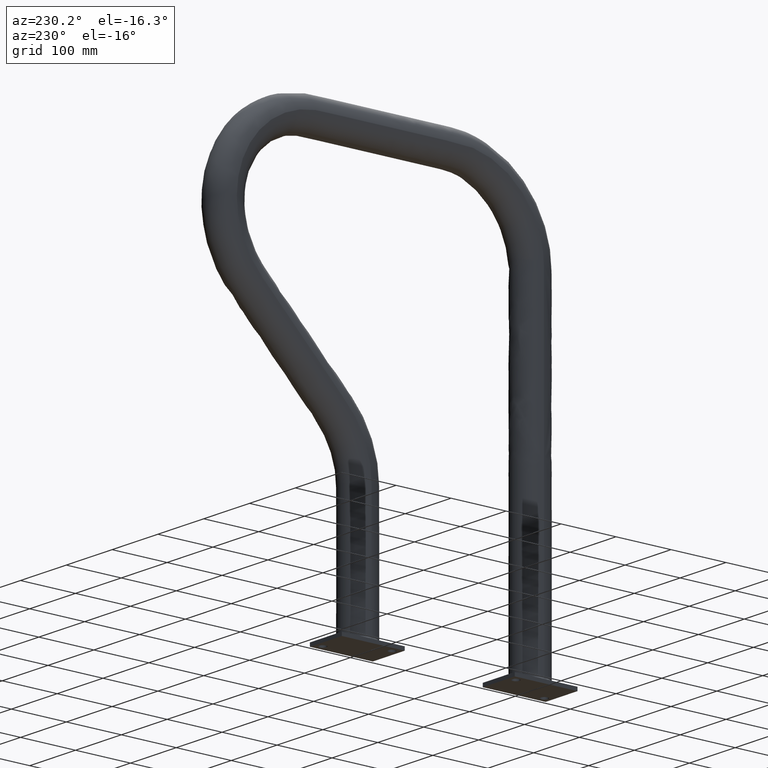
[diagram: clean part render]
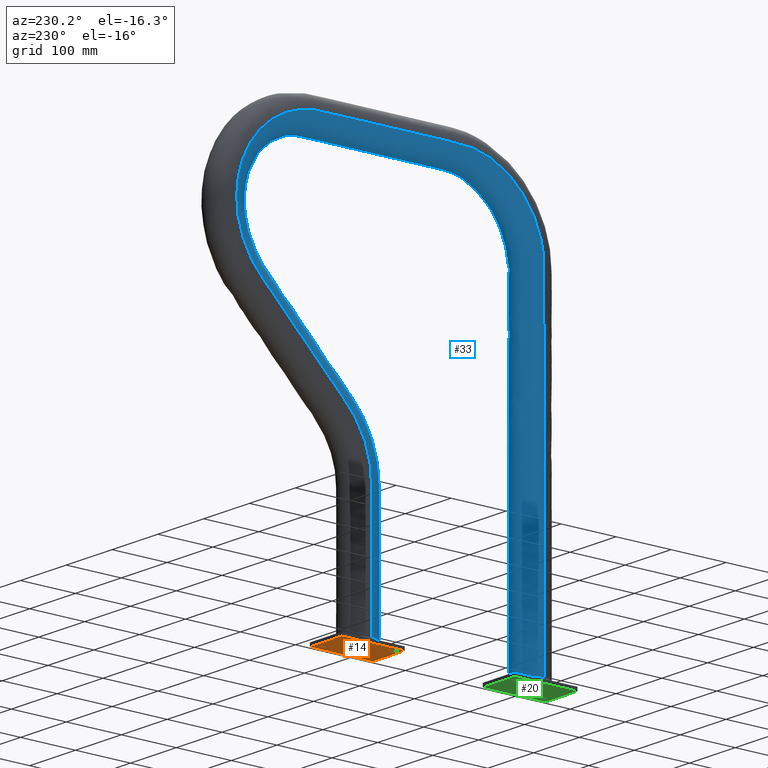
[diagram: same view with three faces highlighted in distinct colors, each labeled with its STEP entity id]
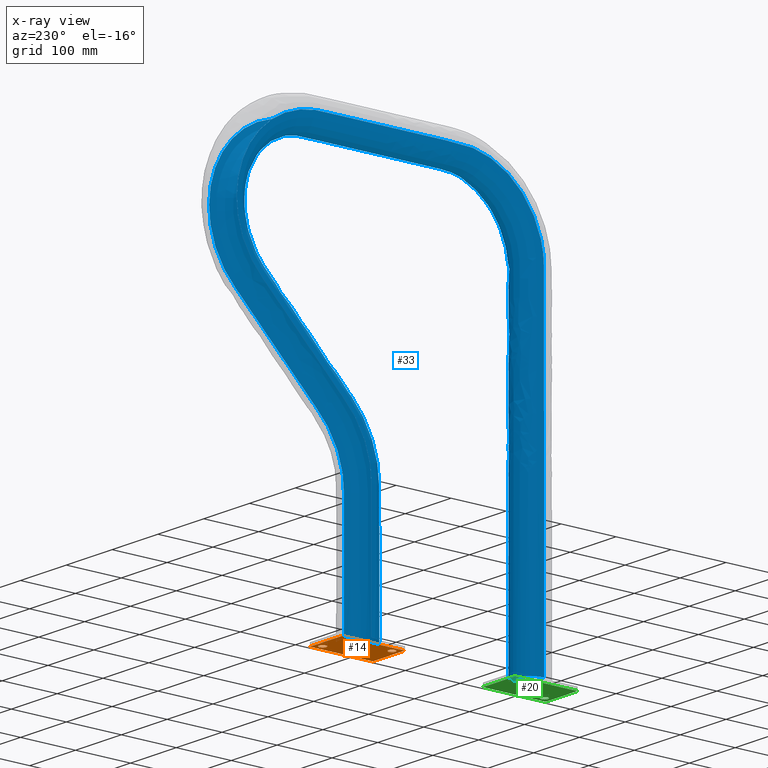
[diagram: x-ray of the same camera — body ghosted, the three highlighted faces saturated]
A machine part, auxiliary view with three faces highlighted in distinct colors.
The next image is the same camera in x-ray (body ghosted, the three faces saturated) — at least one of them is partly hidden behind the body in this view.
Their STEP definitions:

[orange] entity #14 — the highlighted planar face has unit normal (0, 0, -1).
#14=ADVANCED_FACE($,(#50,#40,#41),#360,.T.);
#40=FACE_BOUND($,#77,.T.);
#41=FACE_BOUND($,#78,.T.);
#50=FACE_OUTER_BOUND($,#76,.T.);
#76=EDGE_LOOP($,(#112,#113,#114,#115));
#77=EDGE_LOOP($,(#116,#117));
#78=EDGE_LOOP($,(#118,#119));
#112=ORIENTED_EDGE($,*,*,#240,.T.);
#113=ORIENTED_EDGE($,*,*,#245,.T.);
#114=ORIENTED_EDGE($,*,*,#244,.T.);
#115=ORIENTED_EDGE($,*,*,#243,.T.);
#116=ORIENTED_EDGE($,*,*,#277,.T.);
#117=ORIENTED_EDGE($,*,*,#299,.T.);
#118=ORIENTED_EDGE($,*,*,#280,.T.);
#119=ORIENTED_EDGE($,*,*,#302,.T.);
#240=EDGE_CURVE($,#304,#308,#404,.T.);
#243=EDGE_CURVE($,#306,#304,#407,.T.);
#244=EDGE_CURVE($,#307,#306,#408,.T.);
#245=EDGE_CURVE($,#308,#307,#409,.T.);
#277=EDGE_CURVE($,#328,#342,#383,.T.);
#280=EDGE_CURVE($,#330,#344,#385,.T.);
#299=EDGE_CURVE($,#342,#328,#400,.T.);
#302=EDGE_CURVE($,#344,#330,#402,.T.);
#304=VERTEX_POINT($,#1685);
#306=VERTEX_POINT($,#1687);
#307=VERTEX_POINT($,#1688);
#308=VERTEX_POINT($,#1689);
#328=VERTEX_POINT($,#1709);
#330=VERTEX_POINT($,#1711);
#342=VERTEX_POINT($,#1723);
#344=VERTEX_POINT($,#1725);
#360=PLANE($,#527);
#383=(
BOUNDED_CURVE()
B_SPLINE_CURVE(2,(#724,#725,#726,#727,#728),.UNSPECIFIED.,.F.,.F.)
B_SPLINE_CURVE_WITH_KNOTS((3,2,3),(-1.57087478834752,-1.17815609126064,-0.785437394173758),
.UNSPECIFIED.)
CURVE()
GEOMETRIC_REPRESENTATION_ITEM()
RATIONAL_B_SPLINE_CURVE((1.,0.707106781186547,1.,0.707106781186547,1.))
REPRESENTATION_ITEM($)
);
#385=(
BOUNDED_CURVE()
B_SPLINE_CURVE(2,(#736,#737,#738,#739,#740),.UNSPECIFIED.,.F.,.F.)
B_SPLINE_CURVE_WITH_KNOTS((3,2,3),(-1.57087478834751,-1.17815609126063,-0.785437394173753),
.UNSPECIFIED.)
CURVE()
GEOMETRIC_REPRESENTATION_ITEM()
RATIONAL_B_SPLINE_CURVE((1.,0.707106781186547,1.,0.707106781186548,1.))
REPRESENTATION_ITEM($)
);
#400=(
BOUNDED_CURVE()
B_SPLINE_CURVE(2,(#877,#878,#879,#880,#881),.UNSPECIFIED.,.F.,.F.)
B_SPLINE_CURVE_WITH_KNOTS((3,2,3),(-0.785437394173758,-0.392718697086879,
0.),.UNSPECIFIED.)
CURVE()
GEOMETRIC_REPRESENTATION_ITEM()
RATIONAL_B_SPLINE_CURVE((1.,0.707106781186547,1.,0.707106781186547,1.))
REPRESENTATION_ITEM($)
);
#402=(
BOUNDED_CURVE()
B_SPLINE_CURVE(2,(#889,#890,#891,#892,#893),.UNSPECIFIED.,.F.,.F.)
B_SPLINE_CURVE_WITH_KNOTS((3,2,3),(-0.785437394173753,-0.392718697086876,
0.),.UNSPECIFIED.)
CURVE()
GEOMETRIC_REPRESENTATION_ITEM()
RATIONAL_B_SPLINE_CURVE((1.,0.707106781186547,1.,0.707106781186547,1.))
REPRESENTATION_ITEM($)
);
#404=B_SPLINE_CURVE_WITH_KNOTS($,1,(#557,#558),.UNSPECIFIED.,.F.,.F.,(2,
2),(0.,4.),.UNSPECIFIED.);
#407=B_SPLINE_CURVE_WITH_KNOTS($,1,(#563,#564),.UNSPECIFIED.,.F.,.F.,(2,
2),(10.75,13.5),.UNSPECIFIED.);
#408=B_SPLINE_CURVE_WITH_KNOTS($,1,(#565,#566),.UNSPECIFIED.,.F.,.F.,(2,
2),(6.75,10.75),.UNSPECIFIED.);
#409=B_SPLINE_CURVE_WITH_KNOTS($,1,(#567,#568),.UNSPECIFIED.,.F.,.F.,(2,
2),(4.,6.75),.UNSPECIFIED.);
#527=AXIS2_PLACEMENT_3D($,#899,#542,$);
#542=DIRECTION($,(0.,0.,-1.));
#557=CARTESIAN_POINT($,(1.375,9.625,0.));
#558=CARTESIAN_POINT($,(1.375,5.125,0.));
#563=CARTESIAN_POINT($,(-1.375,9.625,0.));
#564=CARTESIAN_POINT($,(1.375,9.625,0.));
#565=CARTESIAN_POINT($,(-1.375,5.125,0.));
#566=CARTESIAN_POINT($,(-1.375,9.625,0.));
#567=CARTESIAN_POINT($,(1.375,5.125,0.));
#568=CARTESIAN_POINT($,(-1.375,5.125,0.));
#724=CARTESIAN_POINT($,(-0.875,5.375,0.));
#725=CARTESIAN_POINT($,(-0.624999999999995,5.375,-2.87418396286637E-18));
#726=CARTESIAN_POINT($,(-0.625,5.625,0.));
#727=CARTESIAN_POINT($,(-0.624999999999995,5.875,-2.87418396286637E-18));
#728=CARTESIAN_POINT($,(-0.875,5.875,0.));
#736=CARTESIAN_POINT($,(0.875,8.875,0.));
#737=CARTESIAN_POINT($,(1.125,8.875,-2.87418396286637E-18));
#738=CARTESIAN_POINT($,(1.125,9.125,0.));
#739=CARTESIAN_POINT($,(1.125,9.375,-2.87418396286637E-18));
#740=CARTESIAN_POINT($,(0.875,9.375,-1.14910102280362E-33));
#877=CARTESIAN_POINT($,(-0.875,5.875,0.));
#878=CARTESIAN_POINT($,(-1.125,5.875,-2.87418396286637E-18));
#879=CARTESIAN_POINT($,(-1.125,5.625,0.));
#880=CARTESIAN_POINT($,(-1.125,5.375,-2.87418396286637E-18));
#881=CARTESIAN_POINT($,(-0.875,5.375,0.));
#889=CARTESIAN_POINT($,(0.875,9.375,-1.14910102280362E-33));
#890=CARTESIAN_POINT($,(0.625000000000005,9.375,-2.87418396286637E-18));
#891=CARTESIAN_POINT($,(0.625,9.125,0.));
#892=CARTESIAN_POINT($,(0.625000000000005,8.875,-2.87418396286637E-18));
#893=CARTESIAN_POINT($,(0.875,8.875,0.));
#899=CARTESIAN_POINT($,(1.375,5.125,0.));
#1685=CARTESIAN_POINT($,(1.375,9.625,0.));
#1687=CARTESIAN_POINT($,(-1.375,9.625,0.));
#1688=CARTESIAN_POINT($,(-1.375,5.125,0.));
#1689=CARTESIAN_POINT($,(1.375,5.125,0.));
#1709=CARTESIAN_POINT($,(-0.875,5.375,0.));
#1711=CARTESIAN_POINT($,(0.875,8.875,0.));
#1723=CARTESIAN_POINT($,(-0.875,5.875,0.));
#1725=CARTESIAN_POINT($,(0.875,9.375,0.));

[blue] entity #33 — the highlighted face is a freeform B-spline surface patch.
#33=ADVANCED_FACE($,(#69),#353,.T.);
#69=FACE_OUTER_BOUND($,#105,.T.);
#105=EDGE_LOOP($,(#211,#212,#213,#214,#215));
#211=ORIENTED_EDGE($,*,*,#285,.T.);
#212=ORIENTED_EDGE($,*,*,#291,.T.);
#213=ORIENTED_EDGE($,*,*,#269,.T.);
#214=ORIENTED_EDGE($,*,*,#284,.F.);
#215=ORIENTED_EDGE($,*,*,#283,.F.);
#269=EDGE_CURVE($,#323,#321,#377,.T.);
#283=EDGE_CURVE($,#332,#333,#387,.T.);
#284=EDGE_CURVE($,#333,#321,#388,.T.);
#285=EDGE_CURVE($,#332,#337,#389,.T.);
#291=EDGE_CURVE($,#337,#323,#395,.T.);
#321=VERTEX_POINT($,#1702);
#323=VERTEX_POINT($,#1704);
#332=VERTEX_POINT($,#1713);
#333=VERTEX_POINT($,#1714);
#337=VERTEX_POINT($,#1718);
#353=(
BOUNDED_SURFACE()
B_SPLINE_SURFACE(3,2,((#1298,#1299,#1300,#1301,#1302),(#1303,#1304,#1305,
#1306,#1307),(#1308,#1309,#1310,#1311,#1312),(#1313,#1314,#1315,#1316,#1317),
(#1318,#1319,#1320,#1321,#1322),(#1323,#1324,#1325,#1326,#1327),(#1328,#1329,
#1330,#1331,#1332),(#1333,#1334,#1335,#1336,#1337),(#1338,#1339,#1340,#1341,
#1342),(#1343,#1344,#1345,#1346,#1347),(#1348,#1349,#1350,#1351,#1352),(#1353,
#1354,#1355,#1356,#1357),(#1358,#1359,#1360,#1361,#1362),(#1363,#1364,#1365,
#1366,#1367),(#1368,#1369,#1370,#1371,#1372),(#1373,#1374,#1375,#1376,#1377),
(#1378,#1379,#1380,#1381,#1382),(#1383,#1384,#1385,#1386,#1387),(#1388,#1389,
#1390,#1391,#1392),(#1393,#1394,#1395,#1396,#1397),(#1398,#1399,#1400,#1401,
#1402),(#1403,#1404,#1405,#1406,#1407),(#1408,#1409,#1410,#1411,#1412),(#1413,
#1414,#1415,#1416,#1417),(#1418,#1419,#1420,#1421,#1422),(#1423,#1424,#1425,
#1426,#1427),(#1428,#1429,#1430,#1431,#1432),(#1433,#1434,#1435,#1436,#1437),
(#1438,#1439,#1440,#1441,#1442),(#1443,#1444,#1445,#1446,#1447),(#1448,#1449,
#1450,#1451,#1452),(#1453,#1454,#1455,#1456,#1457),(#1458,#1459,#1460,#1461,
#1462),(#1463,#1464,#1465,#1466,#1467),(#1468,#1469,#1470,#1471,#1472),(#1473,
#1474,#1475,#1476,#1477),(#1478,#1479,#1480,#1481,#1482),(#1483,#1484,#1485,
#1486,#1487),(#1488,#1489,#1490,#1491,#1492),(#1493,#1494,#1495,#1496,#1497),
(#1498,#1499,#1500,#1501,#1502),(#1503,#1504,#1505,#1506,#1507),(#1508,#1509,
#1510,#1511,#1512),(#1513,#1514,#1515,#1516,#1517),(#1518,#1519,#1520,#1521,
#1522),(#1523,#1524,#1525,#1526,#1527),(#1528,#1529,#1530,#1531,#1532),(#1533,
#1534,#1535,#1536,#1537),(#1538,#1539,#1540,#1541,#1542),(#1543,#1544,#1545,
#1546,#1547),(#1548,#1549,#1550,#1551,#1552),(#1553,#1554,#1555,#1556,#1557),
(#1558,#1559,#1560,#1561,#1562),(#1563,#1564,#1565,#1566,#1567),(#1568,#1569,
#1570,#1571,#1572),(#1573,#1574,#1575,#1576,#1577),(#1578,#1579,#1580,#1581,
#1582),(#1583,#1584,#1585,#1586,#1587),(#1588,#1589,#1590,#1591,#1592),(#1593,
#1594,#1595,#1596,#1597),(#1598,#1599,#1600,#1601,#1602)),.UNSPECIFIED.,
.F.,.F.,.F.)
B_SPLINE_SURFACE_WITH_KNOTS((4,1,1,1,1,1,1,1,1,1,1,1,1,1,1,1,1,1,1,1,1,1,
1,1,1,1,1,1,1,1,1,1,1,1,1,1,1,1,1,1,1,1,1,1,1,1,1,1,1,1,1,1,1,1,1,1,1,1,
4),(3,2,3),(0.,4.5,6.75,9.,9.5890476981201,10.1780953962402,10.7671430943603,
11.3561907924804,11.9452384906005,12.5342861887206,13.1233338868406,13.7123815849607,
15.8831062160747,18.0538308471886,20.2245554783025,21.3099177938595,22.3952801094164,
22.8370650137872,23.278849918158,23.7206348225287,24.1624197268995,25.045989535641,
25.9295593443826,26.8131291531241,27.6966989618656,29.4638385793487,31.2309781968317,
32.9981178143148,33.8816876230563,34.7652574317979,35.6488272405394,36.0906121449101,
36.5323970492809,37.7823970492809,39.0323970492809,41.5323970492809,42.7823970492809,
44.0323970492809,45.2823970492809,46.5323970492809,47.0978323011465,47.3805499270793,
47.6632675530121,47.9459851789449,48.2287028048777,48.5114204308105,48.7941380567433,
50.0194471609519,51.2447562651606,52.4700653693693,53.0827199214736,53.695374473578,
54.2608097254436,54.8262449773091,55.3916802291747,55.9571154810403,61.8633654810403,
67.7696154810403,79.4321153808704),(-7.47699051554371,-5.60774288665778,
-3.73849525777185),.UNSPECIFIED.)
GEOMETRIC_REPRESENTATION_ITEM()
RATIONAL_B_SPLINE_SURFACE(((1.,0.707106781186547,1.,0.707106781186547,1.),
(1.,0.707106781186547,1.,0.707106781186547,1.),(1.,0.707106781186547,1.,
0.707106781186547,1.),(1.,0.707106781186548,1.,0.707106781186548,1.),(1.,
0.707106781186548,1.,0.707106781186548,1.),(1.,0.707106781186547,1.,0.707106781186547,
1.),(1.,0.707106781186548,1.,0.707106781186547,1.),(1.,0.707106781186547,
1.,0.707106781186547,1.),(1.,0.707106781186548,1.,0.707106781186547,1.),
(1.,0.707106781186547,1.,0.707106781186547,1.),(1.,0.707106781186548,1.,
0.707106781186548,1.),(1.,0.707106781186548,1.,0.707106781186547,1.),(1.,
0.707106781186547,1.,0.707106781186547,1.),(1.,0.707106781186548,1.,0.707106781186548,
1.),(1.,0.707106781186547,1.,0.707106781186547,1.),(1.,0.707106781186548,
1.,0.707106781186548,1.),(1.,0.707106781186547,1.,0.707106781186547,1.),
(1.,0.707106781186548,1.,0.707106781186548,1.),(1.,0.707106781186547,1.,
0.707106781186547,1.),(1.,0.707106781186548,1.,0.707106781186547,1.),(1.,
0.707106781186547,1.,0.707106781186547,1.),(1.,0.707106781186547,1.,0.707106781186547,
1.),(1.,0.707106781186548,1.,0.707106781186547,1.),(1.,0.707106781186548,
1.,0.707106781186548,1.),(1.,0.707106781186547,1.,0.707106781186547,1.),
(1.,0.707106781186547,1.,0.707106781186547,1.),(1.,0.707106781186548,1.,
0.707106781186548,1.),(1.,0.707106781186547,1.,0.707106781186547,1.),(1.,
0.707106781186547,1.,0.707106781186547,1.),(1.,0.707106781186547,1.,0.707106781186547,
1.),(1.,0.707106781186548,1.,0.707106781186548,1.),(1.,0.707106781186548,
1.,0.707106781186547,1.),(1.,0.707106781186548,1.,0.707106781186547,1.),
(1.,0.707106781186547,1.,0.707106781186547,1.),(1.,0.707106781186547,1.,
0.707106781186547,1.),(1.,0.707106781186548,1.,0.707106781186547,1.),(1.,
0.707106781186547,1.,0.707106781186547,1.),(1.,0.707106781186547,1.,0.707106781186547,
1.),(1.,0.707106781186548,1.,0.707106781186547,1.),(1.,0.707106781186547,
1.,0.707106781186547,1.),(1.,0.707106781186548,1.,0.707106781186548,1.),
(1.,0.707106781186548,1.,0.707106781186547,1.),(1.,0.707106781186548,1.,
0.707106781186547,1.),(1.,0.707106781186548,1.,0.707106781186548,1.),(1.,
0.707106781186548,1.,0.707106781186548,1.),(1.,0.707106781186548,1.,0.707106781186548,
1.),(1.,0.707106781186547,1.,0.707106781186547,1.),(1.,0.707106781186548,
1.,0.707106781186548,1.),(1.,0.707106781186548,1.,0.707106781186548,1.),
(1.,0.707106781186548,1.,0.707106781186547,1.),(0.999999999999999,0.707106781186547,
0.999999999999999,0.707106781186547,1.),(1.,0.707106781186548,1.,0.707106781186548,
1.),(1.,0.707106781186547,1.,0.707106781186547,1.),(1.,0.707106781186547,
1.,0.707106781186547,1.),(1.,0.707106781186548,1.,0.707106781186547,1.),
(1.,0.707106781186548,1.,0.707106781186547,1.),(1.,0.707106781186547,1.,
0.707106781186547,1.),(1.,0.707106781186548,1.,0.707106781186547,1.),(1.,
0.707106781186547,1.,0.707106781186547,1.),(1.,0.707106781186548,1.,0.707106781186548,
1.),(1.,0.707106781186547,1.,0.707106781186547,1.)))
REPRESENTATION_ITEM($)
SURFACE()
);
#377=(
BOUNDED_CURVE()
B_SPLINE_CURVE(3,(#636,#637,#638,#639,#640,#641,#642,#643,#644,#645,#646,
#647,#648,#649,#650,#651,#652,#653,#654,#655,#656,#657,#658,#659,#660,#661,
#662,#663,#664,#665,#666,#667,#668,#669,#670,#671,#672,#673,#674,#675,#676,
#677,#678,#679,#680,#681,#682,#683,#684,#685,#686,#687,#688,#689,#690,#691,
#692,#693,#694,#695,#696),.UNSPECIFIED.,.F.,.F.)
B_SPLINE_CURVE_WITH_KNOTS((4,1,1,1,1,1,1,1,1,1,1,1,1,1,1,1,1,1,1,1,1,1,1,
1,1,1,1,1,1,1,1,1,1,1,1,1,1,1,1,1,1,1,1,1,1,1,1,1,1,1,1,1,1,1,1,1,1,1,4),
(0.14999768131915,4.5,6.75,9.,9.5890476981201,10.1780953962402,10.7671430943603,
11.3561907924804,11.9452384906005,12.5342861887206,13.1233338868406,13.7123815849607,
15.8831062160747,18.0538308471886,20.2245554783025,21.3099177938595,22.3952801094164,
22.8370650137872,23.278849918158,23.7206348225287,24.1624197268995,25.045989535641,
25.9295593443826,26.8131291531241,27.6966989618656,29.4638385793487,31.2309781968317,
32.9981178143148,33.8816876230563,34.7652574317979,35.6488272405394,36.0906121449101,
36.5323970492809,37.7823970492809,39.0323970492809,41.5323970492809,42.7823970492809,
44.0323970492809,45.2823970492809,46.5323970492809,47.0978323011465,47.3805499270793,
47.6632675530121,47.9459851789449,48.2287028048777,48.5114204308105,48.7941380567433,
50.0194471609519,51.2447562651606,52.4700653693693,53.0827199214736,53.695374473578,
54.2608097254436,54.8262449773091,55.3916802291747,55.9571154810403,61.8633654810403,
67.7696154810403,79.4321148967266),.UNSPECIFIED.)
CURVE()
GEOMETRIC_REPRESENTATION_ITEM()
RATIONAL_B_SPLINE_CURVE((1.,1.,1.,1.,1.,1.,1.,1.,1.,1.,1.,1.,1.,1.,1.,1.,
1.,1.,1.,1.,1.,1.,1.,1.,1.,1.,1.,1.,1.,1.,1.,1.,1.,1.,1.,1.,1.,1.,1.,1.,
1.,1.,1.,1.,1.,1.,1.,1.,1.,1.,0.999999999999999,1.,1.,1.,1.,1.,1.,1.,1.,
1.,1.))
REPRESENTATION_ITEM($)
);
#387=(
BOUNDED_CURVE()
B_SPLINE_CURVE(3,(#748,#749,#750,#751,#752,#753,#754,#755,#756,#757,#758,
#759,#760,#761,#762,#763,#764,#765,#766,#767,#768,#769,#770,#771,#772,#773,
#774,#775,#776,#777,#778,#779,#780,#781,#782,#783,#784,#785,#786,#787,#788,
#789,#790,#791,#792,#793,#794,#795,#796,#797,#798,#799,#800,#801,#802,#803,
#804,#805,#806,#807,#808),.UNSPECIFIED.,.F.,.F.)
B_SPLINE_CURVE_WITH_KNOTS((4,1,1,1,1,1,1,1,1,1,1,1,1,1,1,1,1,1,1,1,1,1,1,
1,1,1,1,1,1,1,1,1,1,1,1,1,1,1,1,1,1,1,1,1,1,1,1,1,1,1,1,1,1,1,1,1,1,1,4),
(0.149996796353714,4.5,6.75,9.,9.5890476981201,10.1780953962402,10.7671430943603,
11.3561907924804,11.9452384906005,12.5342861887206,13.1233338868406,13.7123815849607,
15.8831062160747,18.0538308471886,20.2245554783025,21.3099177938595,22.3952801094164,
22.8370650137872,23.278849918158,23.7206348225287,24.1624197268995,25.045989535641,
25.9295593443826,26.8131291531241,27.6966989618656,29.4638385793487,31.2309781968317,
32.9981178143148,33.8816876230563,34.7652574317979,35.6488272405394,36.0906121449101,
36.5323970492809,37.7823970492809,39.0323970492809,41.5323970492809,42.7823970492809,
44.0323970492809,45.2823970492809,46.5323970492809,47.0978323011465,47.3805499270793,
47.6632675530121,47.9459851789449,48.2287028048777,48.5114204308105,48.7941380567433,
50.0194471609519,51.2447562651606,52.4700653693693,53.0827199214736,53.695374473578,
54.2608097254436,54.8262449773091,55.3916802291747,55.9571154810403,61.8633654810403,
67.7696154810403,79.4321153808704),.UNSPECIFIED.)
CURVE()
GEOMETRIC_REPRESENTATION_ITEM()
RATIONAL_B_SPLINE_CURVE((1.,1.,1.,1.,1.,1.,1.,1.,1.,1.,1.,1.,1.,1.,1.,1.,
1.,1.,1.,1.,1.,1.,1.,1.,1.,1.,1.,1.,1.,1.,1.,1.,1.,1.,1.,1.,1.,1.,1.,1.,
1.,1.,1.,1.,1.,1.,1.,1.,1.,1.,0.999999999999999,1.,1.,1.,1.,1.,1.,1.,1.,
1.,1.))
REPRESENTATION_ITEM($)
);
#388=(
BOUNDED_CURVE()
B_SPLINE_CURVE(3,(#809,#810,#811,#812,#813,#814,#815),.UNSPECIFIED.,.F.,
.F.)
B_SPLINE_CURVE_WITH_KNOTS((4,1,1,1,4),(4.20973543654917,5.22729711411896,
6.31438222625866,7.33210714360118,8.41917953201777),.UNSPECIFIED.)
CURVE()
GEOMETRIC_REPRESENTATION_ITEM()
RATIONAL_B_SPLINE_CURVE((1.,1.,1.,1.,1.,1.,1.))
REPRESENTATION_ITEM($)
);
#389=(
BOUNDED_CURVE()
B_SPLINE_CURVE(3,(#816,#817,#818,#819),.UNSPECIFIED.,.F.,.F.)
B_SPLINE_CURVE_WITH_KNOTS((4,4),(4.20192811010861,4.21902476615812),.UNSPECIFIED.)
CURVE()
GEOMETRIC_REPRESENTATION_ITEM()
RATIONAL_B_SPLINE_CURVE((1.,1.,1.,1.))
REPRESENTATION_ITEM($)
);
#395=(
BOUNDED_CURVE()
B_SPLINE_CURVE(3,(#844,#845,#846,#847,#848,#849,#850),.UNSPECIFIED.,.F.,
.F.)
B_SPLINE_CURVE_WITH_KNOTS((4,1,1,1,4),(4.21902476615812,5.25220003829197,
6.33712814931928,7.35303186075439,8.40346627752688),.UNSPECIFIED.)
CURVE()
GEOMETRIC_REPRESENTATION_ITEM()
RATIONAL_B_SPLINE_CURVE((1.,1.,1.,1.,1.,1.,1.))
REPRESENTATION_ITEM($)
);
#636=CARTESIAN_POINT($,(1.18750002661052,7.34554686119319,0.40000005318768));
#637=CARTESIAN_POINT($,(1.18750054076513,7.34570832758117,1.85001990622462));
#638=CARTESIAN_POINT($,(1.18751261108159,7.34471099487654,4.04988410585989));
#639=CARTESIAN_POINT($,(1.18754924544854,7.34771774543352,7.00003845710319));
#640=CARTESIAN_POINT($,(1.18757781774712,7.3395373368351,8.69626767759837));
#641=CARTESIAN_POINT($,(1.18760003753637,7.36104371918334,9.83902142103311));
#642=CARTESIAN_POINT($,(1.18761211532942,7.45236133314234,10.4223924555415));
#643=CARTESIAN_POINT($,(1.18762480470855,7.59438817219515,10.9945821341949));
#644=CARTESIAN_POINT($,(1.18763809350837,7.79345210585914,11.5497098113778));
#645=CARTESIAN_POINT($,(1.18765196956348,8.04524952786369,12.0830528252714));
#646=CARTESIAN_POINT($,(1.1876664207085,8.34938739198049,12.5880625377117));
#647=CARTESIAN_POINT($,(1.18768143477802,8.69734339464227,13.0650542851024));
#648=CARTESIAN_POINT($,(1.18771093086696,9.47153006225236,13.8697685737013));
#649=CARTESIAN_POINT($,(1.18775787846256,10.6393826834234,15.0257824515045));
#650=CARTESIAN_POINT($,(1.18782659202484,12.1723605289759,16.5631971063832));
#651=CARTESIAN_POINT($,(1.18788893383518,13.4521727059886,17.8412058704929));
#652=CARTESIAN_POINT($,(1.18794155117844,14.4744163431139,18.8656404433521));
#653=CARTESIAN_POINT($,(1.18797425389565,15.0931442698116,19.4784607395818));
#654=CARTESIAN_POINT($,(1.18799941937212,15.5486335311843,19.9513134465603));
#655=CARTESIAN_POINT($,(1.18801655606,15.8232232927506,20.297813390522));
#656=CARTESIAN_POINT($,(1.18803388457132,16.0738437078251,20.6621222206536));
#657=CARTESIAN_POINT($,(1.18805723817472,16.3705592083273,21.1715304340619));
#658=CARTESIAN_POINT($,(1.18808688407635,16.6696774212637,21.8462066871592));
#659=CARTESIAN_POINT($,(1.1881231443362,16.9060424130784,22.7002675496236));
#660=CARTESIAN_POINT($,(1.18816004871597,17.0144295067279,23.5795041281065));
#661=CARTESIAN_POINT($,(1.18821005863828,16.985695551388,24.7606211391669));
#662=CARTESIAN_POINT($,(1.18827397605113,16.6240149809328,26.2044846154386));
#663=CARTESIAN_POINT($,(1.18835259649879,15.7055715811961,27.736816659476));
#664=CARTESIAN_POINT($,(1.18841943944562,14.6026632893214,28.7364685394192));
#665=CARTESIAN_POINT($,(1.18847354511549,13.574540160616,29.3185175345303));
#666=CARTESIAN_POINT($,(1.18851439896612,12.7481338960121,29.6375902624344));
#667=CARTESIAN_POINT($,(1.18854863845854,12.0276528859738,29.7986458772621));
#668=CARTESIAN_POINT($,(1.18857612629364,11.4418360721463,29.8658597803028));
#669=CARTESIAN_POINT($,(1.18860938314892,10.730703637133,29.8782322107936));
#670=CARTESIAN_POINT($,(1.18865539888104,9.74984510423498,29.8738929234498));
#671=CARTESIAN_POINT($,(1.18873385852715,8.08336289204637,29.875374273069));
#672=CARTESIAN_POINT($,(1.18881245928802,6.41670615321504,29.8749116005803));
#673=CARTESIAN_POINT($,(1.18889073615092,4.75005208670264,29.8749227428603));
#674=CARTESIAN_POINT($,(1.18894916559591,3.49999875133177,29.8753946424087));
#675=CARTESIAN_POINT($,(1.18900720058554,2.25000354676509,29.8734986875048));
#676=CARTESIAN_POINT($,(1.18905422377464,1.22826480712053,29.8793123223));
#677=CARTESIAN_POINT($,(1.18908615430312,0.528765083750568,29.8640053564864));
#678=CARTESIAN_POINT($,(1.18910329481787,0.154464340720613,29.8169249146227));
#679=CARTESIAN_POINT($,(1.18911611409676,-0.124640894541615,29.7710378377547));
#680=CARTESIAN_POINT($,(1.18912889592347,-0.401148905886091,29.7113561660349));
#681=CARTESIAN_POINT($,(1.18914163895294,-0.674464339285013,29.6389343948676));
#682=CARTESIAN_POINT($,(1.18915434184016,-0.944118163554715,29.5536402899793));
#683=CARTESIAN_POINT($,(1.18918107443878,-1.5042260039333,29.3470922449522));
#684=CARTESIAN_POINT($,(1.18922151009293,-2.3169886369094,28.9248971817326));
#685=CARTESIAN_POINT($,(1.18927497593431,-3.27222251433781,28.1472496188826));
#686=CARTESIAN_POINT($,(1.18931867783824,-3.92024628919738,27.3512606441674));
#687=CARTESIAN_POINT($,(1.18935307283336,-4.33384926382493,26.6454693547667));
#688=CARTESIAN_POINT($,(1.18937791702343,-4.58179722698739,26.1017703649988));
#689=CARTESIAN_POINT($,(1.18940182278699,-4.77069226280928,25.5511874862511));
#690=CARTESIAN_POINT($,(1.18942480575832,-4.90119292651665,25.0010301728267));
#691=CARTESIAN_POINT($,(1.18944750260886,-4.98686892631041,24.4404617718269));
#692=CARTESIAN_POINT($,(1.18954042883036,-5.00633578118098,22.0947652550622));
#693=CARTESIAN_POINT($,(1.18969103455355,-4.99742463195944,17.968794642721));
#694=CARTESIAN_POINT($,(1.18991594311466,-5.00099659239819,10.1438808614838));
#695=CARTESIAN_POINT($,(1.18999859489637,-4.99975324913284,4.28748468494972));
#696=CARTESIAN_POINT($,(1.18999997338845,-4.99999031936882,0.399999946810388));
#748=CARTESIAN_POINT($,(-1.1875000266102,7.34554686109464,0.399999168210603));
#749=CARTESIAN_POINT($,(-1.1875005407619,7.34570832784863,1.85001931628429));
#750=CARTESIAN_POINT($,(-1.18751261107792,7.34471099457588,4.04988381085606));
#751=CARTESIAN_POINT($,(-1.18754924544854,7.34771774543352,7.00003845710319));
#752=CARTESIAN_POINT($,(-1.18757781774712,7.3395373368351,8.69626767759837));
#753=CARTESIAN_POINT($,(-1.18760003753637,7.36104371918334,9.83902142103312));
#754=CARTESIAN_POINT($,(-1.18761211532942,7.45236133314234,10.4223924555415));
#755=CARTESIAN_POINT($,(-1.18762480470855,7.59438817219515,10.9945821341949));
#756=CARTESIAN_POINT($,(-1.18763809350836,7.79345210585914,11.5497098113778));
#757=CARTESIAN_POINT($,(-1.18765196956349,8.04524952786369,12.0830528252714));
#758=CARTESIAN_POINT($,(-1.1876664207085,8.34938739198049,12.5880625377117));
#759=CARTESIAN_POINT($,(-1.18768143477802,8.69734339464227,13.0650542851024));
#760=CARTESIAN_POINT($,(-1.18771093086696,9.47153006225233,13.8697685737013));
#761=CARTESIAN_POINT($,(-1.18775787846255,10.6393826834234,15.0257824515045));
#762=CARTESIAN_POINT($,(-1.18782659202485,12.1723605289759,16.5631971063832));
#763=CARTESIAN_POINT($,(-1.18788893383518,13.4521727059886,17.8412058704929));
#764=CARTESIAN_POINT($,(-1.18794155117843,14.4744163431139,18.8656404433521));
#765=CARTESIAN_POINT($,(-1.18797425389565,15.0931442698116,19.4784607395818));
#766=CARTESIAN_POINT($,(-1.18799941937212,15.5486335311843,19.9513134465603));
#767=CARTESIAN_POINT($,(-1.18801655605999,15.8232232927506,20.297813390522));
#768=CARTESIAN_POINT($,(-1.18803388457133,16.073843707825,20.6621222206536));
#769=CARTESIAN_POINT($,(-1.18805723817471,16.3705592083273,21.171530434062));
#770=CARTESIAN_POINT($,(-1.18808688407635,16.6696774212636,21.8462066871592));
#771=CARTESIAN_POINT($,(-1.18812314433619,16.9060424130784,22.7002675496236));
#772=CARTESIAN_POINT($,(-1.18816004871597,17.0144295067279,23.5795041281065));
#773=CARTESIAN_POINT($,(-1.18821005863828,16.985695551388,24.7606211391669));
#774=CARTESIAN_POINT($,(-1.18827397605112,16.6240149809328,26.2044846154387));
#775=CARTESIAN_POINT($,(-1.1883525964988,15.7055715811961,27.7368166594761));
#776=CARTESIAN_POINT($,(-1.18841943944562,14.6026632893214,28.7364685394192));
#777=CARTESIAN_POINT($,(-1.18847354511548,13.574540160616,29.3185175345303));
#778=CARTESIAN_POINT($,(-1.18851439896612,12.7481338960121,29.6375902624344));
#779=CARTESIAN_POINT($,(-1.18854863845853,12.0276528859738,29.7986458772621));
#780=CARTESIAN_POINT($,(-1.18857612629363,11.4418360721463,29.8658597803028));
#781=CARTESIAN_POINT($,(-1.18860938314892,10.730703637133,29.8782322107936));
#782=CARTESIAN_POINT($,(-1.18865539888103,9.74984510423498,29.8738929234498));
#783=CARTESIAN_POINT($,(-1.18873385852716,8.08336289204637,29.875374273069));
#784=CARTESIAN_POINT($,(-1.18881245928802,6.41670615321504,29.8749116005803));
#785=CARTESIAN_POINT($,(-1.18889073615092,4.75005208670264,29.8749227428602));
#786=CARTESIAN_POINT($,(-1.18894916559591,3.49999875133176,29.8753946424087));
#787=CARTESIAN_POINT($,(-1.18900720058554,2.25000354676509,29.8734986875048));
#788=CARTESIAN_POINT($,(-1.18905422377462,1.22826480712053,29.8793123223));
#789=CARTESIAN_POINT($,(-1.18908615430312,0.528765083750568,29.8640053564864));
#790=CARTESIAN_POINT($,(-1.18910329481786,0.154464340720613,29.8169249146227));
#791=CARTESIAN_POINT($,(-1.18911611409675,-0.124640894541615,29.7710378377547));
#792=CARTESIAN_POINT($,(-1.18912889592346,-0.401148905886091,29.7113561660349));
#793=CARTESIAN_POINT($,(-1.18914163895294,-0.674464339285013,29.6389343948676));
#794=CARTESIAN_POINT($,(-1.18915434184016,-0.944118163554715,29.5536402899793));
#795=CARTESIAN_POINT($,(-1.18918107443877,-1.5042260039333,29.3470922449522));
#796=CARTESIAN_POINT($,(-1.18922151009293,-2.31698863690941,28.9248971817326));
#797=CARTESIAN_POINT($,(-1.1892749759343,-3.27222251433781,28.1472496188826));
#798=CARTESIAN_POINT($,(-1.18931867783825,-3.92024628919739,27.3512606441674));
#799=CARTESIAN_POINT($,(-1.18935307283336,-4.33384926382494,26.6454693547667));
#800=CARTESIAN_POINT($,(-1.18937791702343,-4.58179722698739,26.1017703649988));
#801=CARTESIAN_POINT($,(-1.18940182278698,-4.77069226280929,25.5511874862511));
#802=CARTESIAN_POINT($,(-1.18942480575831,-4.90119292651666,25.0010301728267));
#803=CARTESIAN_POINT($,(-1.18944750260884,-4.98686892631042,24.4404617718269));
#804=CARTESIAN_POINT($,(-1.18954042883036,-5.00633578118099,22.0947652550622));
#805=CARTESIAN_POINT($,(-1.18969103455355,-4.99742463195945,17.968794642721));
#806=CARTESIAN_POINT($,(-1.18991594311929,-5.00099659247187,10.1438807001044));
#807=CARTESIAN_POINT($,(-1.18999859490092,-4.99975324906432,4.28748436217916));
#808=CARTESIAN_POINT($,(-1.18999997338862,-4.99999031939835,0.399999462668524));
#809=CARTESIAN_POINT($,(-1.19074860920252,-4.99998907537235,0.399999962547309));
#810=CARTESIAN_POINT($,(-1.19024880838931,-4.69921751847406,0.40000226644522));
#811=CARTESIAN_POINT($,(-0.942821048653579,-4.07616665869377,0.400006174702568));
#812=CARTESIAN_POINT($,(-0.0206564266363216,-3.68023164439544,0.40000781193651));
#813=CARTESIAN_POINT($,(0.922900745548162,-4.05846046359498,0.400006238579205));
#814=CARTESIAN_POINT($,(1.19201895240883,-4.67785204659993,0.400002454832195));
#815=CARTESIAN_POINT($,(1.18999997338845,-4.99999031936882,0.399999946810388));
#816=CARTESIAN_POINT($,(-1.18830401951042,7.34554779398043,0.400000082264978));
#817=CARTESIAN_POINT($,(-1.18830987922066,7.34049776464831,0.400000011319803));
#818=CARTESIAN_POINT($,(-1.18828179457758,7.3354476129234,0.399999940152221));
#819=CARTESIAN_POINT($,(-1.18821960338276,7.33039772443555,0.399999868764058));
#844=CARTESIAN_POINT($,(-1.18821960338276,7.33039772443555,0.399999868764058));
#845=CARTESIAN_POINT($,(-1.18446130091416,7.02522577165308,0.399995554675674));
#846=CARTESIAN_POINT($,(-0.921405992258173,6.40156629611987,0.399985058938785));
#847=CARTESIAN_POINT($,(0.0132134504605972,6.02851672025201,0.399977376820512));
#848=CARTESIAN_POINT($,(0.934920662624748,6.42570893760486,0.399985486506577));
#849=CARTESIAN_POINT($,(1.18907446729116,7.03449399730319,0.399995730375849));
#850=CARTESIAN_POINT($,(1.18750002661052,7.34554686119319,0.40000005318768));
#1298=CARTESIAN_POINT($,(1.1875,7.345527146057,0.25));
#1299=CARTESIAN_POINT($,(1.1875,6.158027146057,0.25));
#1300=CARTESIAN_POINT($,(0.,6.158027146057,0.25));
#1301=CARTESIAN_POINT($,(-1.1875,6.15802714605701,0.25));
#1302=CARTESIAN_POINT($,(-1.1875,7.345527146057,0.25));
#1303=CARTESIAN_POINT($,(1.1875,7.34575533349204,1.75002778948865));
#1304=CARTESIAN_POINT($,(1.1875,6.15830052503464,1.75162045477454));
#1305=CARTESIAN_POINT($,(1.9151347174784E-15,6.15830052503465,1.75162045477454));
#1306=CARTESIAN_POINT($,(-1.1875,6.15830052503464,1.75162045477454));
#1307=CARTESIAN_POINT($,(-1.1875,7.34575533349204,1.75002778948865));
#1308=CARTESIAN_POINT($,(1.18751199016987,7.34466003380381,3.99988227577155));
#1309=CARTESIAN_POINT($,(1.18751199016988,6.1569763157721,3.99383014768515));
#1310=CARTESIAN_POINT($,(0.,6.15697631577208,3.99383014768515));
#1311=CARTESIAN_POINT($,(-1.18751199016988,6.1569763157721,3.99383014768515));
#1312=CARTESIAN_POINT($,(-1.18751199016987,7.34466003380381,3.99988227577155));
#1313=CARTESIAN_POINT($,(1.18754924544854,7.34771774543352,7.00003845710319));
#1314=CARTESIAN_POINT($,(1.18754924544853,6.16060233879386,7.01532804384777));
#1315=CARTESIAN_POINT($,(0.,6.16060233879387,7.01532804384777));
#1316=CARTESIAN_POINT($,(-1.18754924544852,6.16060233879386,7.01532804384777));
#1317=CARTESIAN_POINT($,(-1.18754924544854,7.34771774543352,7.00003845710319));
#1318=CARTESIAN_POINT($,(1.18757781774712,7.3395373368351,8.69626767759837));
#1319=CARTESIAN_POINT($,(1.18757781774712,6.15077326306784,8.65446098822215));
#1320=CARTESIAN_POINT($,(8.46545056276681E-15,6.15077326306782,8.65446098822215));
#1321=CARTESIAN_POINT($,(-1.18757781774712,6.15077326306784,8.65446098822215));
#1322=CARTESIAN_POINT($,(-1.18757781774712,7.33953733683511,8.69626767759837));
#1323=CARTESIAN_POINT($,(1.18760003753637,7.36104371918334,9.83902142103312));
#1324=CARTESIAN_POINT($,(1.18760003753637,6.1765166723887,9.94732145678481));
#1325=CARTESIAN_POINT($,(0.,6.17651667238869,9.94732145678481));
#1326=CARTESIAN_POINT($,(-1.18760003753637,6.1765166723887,9.94732145678481));
#1327=CARTESIAN_POINT($,(-1.18760003753637,7.36104371918334,9.83902142103312));
#1328=CARTESIAN_POINT($,(1.18761211532942,7.45236133314234,10.4223924555415));
#1329=CARTESIAN_POINT($,(1.18761211532941,6.28588779599997,10.6566632202224));
#1330=CARTESIAN_POINT($,(0.,6.28588779599998,10.6566632202224));
#1331=CARTESIAN_POINT($,(-1.18761211532941,6.28588779599997,10.6566632202224));
#1332=CARTESIAN_POINT($,(-1.18761211532942,7.45236133314234,10.4223924555415));
#1333=CARTESIAN_POINT($,(1.18762480470855,7.59438817219515,10.9945821341949));
#1334=CARTESIAN_POINT($,(1.18762480470854,6.45605079900847,11.3393334575416));
#1335=CARTESIAN_POINT($,(0.,6.45605079900847,11.3393334575416));
#1336=CARTESIAN_POINT($,(-1.18762480470854,6.45605079900847,11.3393334575416));
#1337=CARTESIAN_POINT($,(-1.18762480470855,7.59438817219515,10.9945821341949));
#1338=CARTESIAN_POINT($,(1.18763809350837,7.79345210585914,11.5497098113778));
#1339=CARTESIAN_POINT($,(1.18763809350837,6.69436903951301,12.0049657343764));
#1340=CARTESIAN_POINT($,(-1.91513471747839E-15,6.694369039513,12.0049657343764));
#1341=CARTESIAN_POINT($,(-1.18763809350836,6.69436903951301,12.0049657343764));
#1342=CARTESIAN_POINT($,(-1.18763809350836,7.79345210585914,11.5497098113778));
#1343=CARTESIAN_POINT($,(1.18765196956348,8.04524952786369,12.0830528252714));
#1344=CARTESIAN_POINT($,(1.18765196956348,6.99650085805108,12.644188961339));
#1345=CARTESIAN_POINT($,(1.9151347174784E-15,6.99650085805107,12.644188961339));
#1346=CARTESIAN_POINT($,(-1.18765196956347,6.99650085805108,12.644188961339));
#1347=CARTESIAN_POINT($,(-1.18765196956349,8.04524952786369,12.0830528252714));
#1348=CARTESIAN_POINT($,(1.1876664207085,8.34938739198049,12.5880625377117));
#1349=CARTESIAN_POINT($,(1.1876664207085,7.35893984943704,13.2473347591318));
#1350=CARTESIAN_POINT($,(0.,7.35893984943704,13.2473347591318));
#1351=CARTESIAN_POINT($,(-1.1876664207085,7.35893984943704,13.2473347591318));
#1352=CARTESIAN_POINT($,(-1.1876664207085,8.34938739198049,12.5880625377117));
#1353=CARTESIAN_POINT($,(1.18768143477802,8.69734339464227,13.0650542851024));
#1354=CARTESIAN_POINT($,(1.18768143477803,7.78280790278342,13.825788362983));
#1355=CARTESIAN_POINT($,(-3.83026943495679E-15,7.78280790278341,13.825788362983));
#1356=CARTESIAN_POINT($,(-1.18768143477802,7.78280790278342,13.825788362983));
#1357=CARTESIAN_POINT($,(-1.18768143477802,8.69734339464227,13.0650542851024));
#1358=CARTESIAN_POINT($,(1.18771093086696,9.47153006225233,13.8697685737013));
#1359=CARTESIAN_POINT($,(1.18771093086696,8.66037655444292,14.7399684739107));
#1360=CARTESIAN_POINT($,(-6.14785999886181E-15,8.66037655444291,14.7399684739107));
#1361=CARTESIAN_POINT($,(-1.18771093086696,8.66037655444292,14.7399684739107));
#1362=CARTESIAN_POINT($,(-1.18771093086696,9.47153006225233,13.8697685737013));
#1363=CARTESIAN_POINT($,(1.18775787846256,10.6393826834234,15.0257824515045));
#1364=CARTESIAN_POINT($,(1.18775787846256,9.78854796054918,15.8540471579163));
#1365=CARTESIAN_POINT($,(-3.83026943495679E-15,9.7885479605492,15.8540471579163));
#1366=CARTESIAN_POINT($,(-1.18775787846255,9.78854796054918,15.8540471579163));
#1367=CARTESIAN_POINT($,(-1.18775787846255,10.6393826834234,15.0257824515045));
#1368=CARTESIAN_POINT($,(1.18782659202484,12.1723605289759,16.5631971063832));
#1369=CARTESIAN_POINT($,(1.18782659202484,11.33490337513,17.4057350491994));
#1370=CARTESIAN_POINT($,(1.9151347174784E-15,11.3349033751299,17.4057350491994));
#1371=CARTESIAN_POINT($,(-1.18782659202484,11.33490337513,17.4057350491994));
#1372=CARTESIAN_POINT($,(-1.18782659202485,12.1723605289759,16.5631971063832));
#1373=CARTESIAN_POINT($,(1.18788893383518,13.4521727059886,17.8412058704929));
#1374=CARTESIAN_POINT($,(1.18788893383517,12.6135566887464,18.6825654219158));
#1375=CARTESIAN_POINT($,(0.,12.6135566887464,18.6825654219158));
#1376=CARTESIAN_POINT($,(-1.18788893383518,12.6135566887464,18.6825654219158));
#1377=CARTESIAN_POINT($,(-1.18788893383518,13.4521727059886,17.8412058704929));
#1378=CARTESIAN_POINT($,(1.18794155117844,14.4744163431139,18.8656404433521));
#1379=CARTESIAN_POINT($,(1.18794155117844,13.6279533717327,19.6989017356112));
#1380=CARTESIAN_POINT($,(-3.83026943495679E-15,13.6279533717326,19.6989017356112));
#1381=CARTESIAN_POINT($,(-1.18794155117844,13.6279533717327,19.6989017356112));
#1382=CARTESIAN_POINT($,(-1.18794155117843,14.4744163431139,18.8656404433521));
#1383=CARTESIAN_POINT($,(1.18797425389565,15.0931442698116,19.4784607395818));
#1384=CARTESIAN_POINT($,(1.18797425389564,14.2730762073934,20.3393092995952));
#1385=CARTESIAN_POINT($,(0.,14.2730762073934,20.3393092995952));
#1386=CARTESIAN_POINT($,(-1.18797425389564,14.2730762073934,20.3393092995952));
#1387=CARTESIAN_POINT($,(-1.18797425389565,15.0931442698116,19.4784607395818));
#1388=CARTESIAN_POINT($,(1.18799941937212,15.5486335311843,19.9513134465603));
#1389=CARTESIAN_POINT($,(1.18799941937212,14.6496036525355,20.7298028731686));
#1390=CARTESIAN_POINT($,(1.9151347174784E-15,14.6496036525355,20.7298028731686));
#1391=CARTESIAN_POINT($,(-1.18799941937212,14.6496036525355,20.7298028731686));
#1392=CARTESIAN_POINT($,(-1.18799941937212,15.5486335311843,19.9513134465603));
#1393=CARTESIAN_POINT($,(1.18801655606,15.8232232927506,20.297813390522));
#1394=CARTESIAN_POINT($,(1.18801655606,14.867785732326,21.0056800721355));
#1395=CARTESIAN_POINT($,(-1.91513471747839E-15,14.867785732326,21.0056800721355));
#1396=CARTESIAN_POINT($,(-1.18801655606,14.867785732326,21.0056800721355));
#1397=CARTESIAN_POINT($,(-1.18801655605999,15.8232232927506,20.297813390522));
#1398=CARTESIAN_POINT($,(1.18803388457133,16.073843707825,20.6621222206536));
#1399=CARTESIAN_POINT($,(1.18803388457133,15.0693005454818,21.2983968894346));
#1400=CARTESIAN_POINT($,(-6.14785999886181E-15,15.0693005454818,21.2983968894347));
#1401=CARTESIAN_POINT($,(-1.18803388457133,15.0693005454818,21.2983968894346));
#1402=CARTESIAN_POINT($,(-1.18803388457133,16.073843707825,20.6621222206536));
#1403=CARTESIAN_POINT($,(1.18805723817472,16.3705592083273,21.171530434062));
#1404=CARTESIAN_POINT($,(1.18805723817471,15.3071036639295,21.706809998385));
#1405=CARTESIAN_POINT($,(-1.91513471747839E-15,15.3071036639295,21.706809998385));
#1406=CARTESIAN_POINT($,(-1.18805723817471,15.3071036639295,21.706809998385));
#1407=CARTESIAN_POINT($,(-1.18805723817471,16.3705592083273,21.171530434062));
#1408=CARTESIAN_POINT($,(1.18808688407635,16.6696774212636,21.8462066871592));
#1409=CARTESIAN_POINT($,(1.18808688407635,15.5470113692389,22.2479503827684));
#1410=CARTESIAN_POINT($,(-6.14785999886181E-15,15.5470113692389,22.2479503827684));
#1411=CARTESIAN_POINT($,(-1.18808688407635,15.5470113692389,22.2479503827684));
#1412=CARTESIAN_POINT($,(-1.18808688407635,16.6696774212636,21.8462066871592));
#1413=CARTESIAN_POINT($,(1.1881231443362,16.9060424130784,22.7002675496236));
#1414=CARTESIAN_POINT($,(1.1881231443362,15.7365220317899,22.9328873687547));
#1415=CARTESIAN_POINT($,(-3.83026943495679E-15,15.7365220317898,22.9328873687547));
#1416=CARTESIAN_POINT($,(-1.1881231443362,15.7365220317899,22.9328873687547));
#1417=CARTESIAN_POINT($,(-1.18812314433619,16.9060424130784,22.7002675496236));
#1418=CARTESIAN_POINT($,(1.18816004871597,17.0144295067279,23.5795041281065));
#1419=CARTESIAN_POINT($,(1.18816004871598,15.8234130202159,23.6380227858495));
#1420=CARTESIAN_POINT($,(0.,15.8234130202159,23.6380227858495));
#1421=CARTESIAN_POINT($,(-1.18816004871597,15.8234130202159,23.6380227858495));
#1422=CARTESIAN_POINT($,(-1.18816004871597,17.0144295067279,23.5795041281065));
#1423=CARTESIAN_POINT($,(1.18821005863828,16.985695551388,24.7606211391669));
#1424=CARTESIAN_POINT($,(1.18821005863828,15.8003170098996,24.5852412657103));
#1425=CARTESIAN_POINT($,(0.,15.8003170098996,24.5852412657103));
#1426=CARTESIAN_POINT($,(-1.18821005863827,15.8003170098996,24.5852412657103));
#1427=CARTESIAN_POINT($,(-1.18821005863828,16.985695551388,24.7606211391669));
#1428=CARTESIAN_POINT($,(1.18827397605113,16.6240149809328,26.2044846154387));
#1429=CARTESIAN_POINT($,(1.18827397605113,15.5102031504609,25.7431475301194));
#1430=CARTESIAN_POINT($,(-3.83026943495679E-15,15.5102031504609,25.7431475301194));
#1431=CARTESIAN_POINT($,(-1.18827397605113,15.5102031504609,25.7431475301194));
#1432=CARTESIAN_POINT($,(-1.18827397605112,16.6240149809328,26.2044846154387));
#1433=CARTESIAN_POINT($,(1.18835259649879,15.7055715811961,27.7368166594761));
#1434=CARTESIAN_POINT($,(1.1883525964988,14.7735769804037,26.971956114784));
#1435=CARTESIAN_POINT($,(1.9151347174784E-15,14.7735769804037,26.971956114784));
#1436=CARTESIAN_POINT($,(-1.18835259649879,14.7735769804037,26.971956114784));
#1437=CARTESIAN_POINT($,(-1.1883525964988,15.7055715811961,27.7368166594761));
#1438=CARTESIAN_POINT($,(1.18841943944562,14.6026632893214,28.7364685394192));
#1439=CARTESIAN_POINT($,(1.18841943944563,13.8891090368466,27.7735604591938));
#1440=CARTESIAN_POINT($,(0.,13.8891090368466,27.7735604591938));
#1441=CARTESIAN_POINT($,(-1.18841943944562,13.8891090368466,27.7735604591938));
#1442=CARTESIAN_POINT($,(-1.18841943944562,14.6026632893214,28.7364685394192));
#1443=CARTESIAN_POINT($,(1.18847354511549,13.574540160616,29.3185175345303));
#1444=CARTESIAN_POINT($,(1.18847354511548,13.0644861403177,28.2402722892284));
#1445=CARTESIAN_POINT($,(1.9151347174784E-15,13.0644861403177,28.2402722892284));
#1446=CARTESIAN_POINT($,(-1.18847354511548,13.0644861403177,28.2402722892284));
#1447=CARTESIAN_POINT($,(-1.18847354511548,13.574540160616,29.3185175345303));
#1448=CARTESIAN_POINT($,(1.18851439896612,12.7481338960121,29.6375902624344));
#1449=CARTESIAN_POINT($,(1.18851439896612,12.4022127038858,28.4961039311418));
#1450=CARTESIAN_POINT($,(-1.91513471747839E-15,12.4022127038859,28.4961039311419));
#1451=CARTESIAN_POINT($,(-1.18851439896612,12.4022127038858,28.4961039311418));
#1452=CARTESIAN_POINT($,(-1.18851439896612,12.7481338960121,29.6375902624344));
#1453=CARTESIAN_POINT($,(1.18854863845854,12.0276528859738,29.7986458772621));
#1454=CARTESIAN_POINT($,(1.18854863845854,11.8230139659411,28.6252225024889));
#1455=CARTESIAN_POINT($,(-3.83026943495679E-15,11.8230139659411,28.6252225024889));
#1456=CARTESIAN_POINT($,(-1.18854863845854,11.8230139659411,28.6252225024889));
#1457=CARTESIAN_POINT($,(-1.18854863845853,12.0276528859738,29.7986458772621));
#1458=CARTESIAN_POINT($,(1.18857612629364,11.4418360721463,29.8658597803028));
#1459=CARTESIAN_POINT($,(1.18857612629363,11.3576451971851,28.6790943265196));
#1460=CARTESIAN_POINT($,(-1.91513471747839E-15,11.3576451971851,28.6790943265196));
#1461=CARTESIAN_POINT($,(-1.18857612629363,11.3576451971851,28.6790943265196));
#1462=CARTESIAN_POINT($,(-1.18857612629363,11.4418360721463,29.8658597803028));
#1463=CARTESIAN_POINT($,(1.18860938314892,10.730703637133,29.8782322107936));
#1464=CARTESIAN_POINT($,(1.18860938314891,10.7604845125365,28.6889825284981));
#1465=CARTESIAN_POINT($,(-6.14785999886181E-15,10.7604845125365,28.6889825284981));
#1466=CARTESIAN_POINT($,(-1.18860938314891,10.7604845125365,28.6889825284981));
#1467=CARTESIAN_POINT($,(-1.18860938314892,10.730703637133,29.8782322107936));
#1468=CARTESIAN_POINT($,(1.18865539888104,9.74984510423498,29.8738929234498));
#1469=CARTESIAN_POINT($,(1.18865539888103,9.73960770800294,28.6854568356484));
#1470=CARTESIAN_POINT($,(-1.91513471747839E-15,9.73960770800293,28.6854568356484));
#1471=CARTESIAN_POINT($,(-1.18865539888103,9.73960770800294,28.6854568356484));
#1472=CARTESIAN_POINT($,(-1.18865539888103,9.74984510423498,29.8738929234498));
#1473=CARTESIAN_POINT($,(1.18873385852715,8.08336289204637,29.875374273069));
#1474=CARTESIAN_POINT($,(1.18873385852715,8.08700767439419,28.6865662721285));
#1475=CARTESIAN_POINT($,(1.9151347174784E-15,8.08700767439422,28.6865662721285));
#1476=CARTESIAN_POINT($,(-1.18873385852715,8.08700767439419,28.6865662721285));
#1477=CARTESIAN_POINT($,(-1.18873385852716,8.08336289204637,29.875374273069));
#1478=CARTESIAN_POINT($,(1.18881245928802,6.41670615321504,29.8749116005803));
#1479=CARTESIAN_POINT($,(1.18881245928802,6.41527812619574,28.686116650443));
#1480=CARTESIAN_POINT($,(-6.14785999886181E-15,6.41527812619576,28.686116650443));
#1481=CARTESIAN_POINT($,(-1.18881245928802,6.41527812619574,28.686116650443));
#1482=CARTESIAN_POINT($,(-1.18881245928802,6.41670615321504,29.8749116005803));
#1483=CARTESIAN_POINT($,(1.18889073615092,4.75005208670264,29.8749227428602));
#1484=CARTESIAN_POINT($,(1.18889073615091,4.75110578228777,28.6860473191464));
#1485=CARTESIAN_POINT($,(-6.14785999886181E-15,4.75110578228776,28.6860473191464));
#1486=CARTESIAN_POINT($,(-1.18889073615091,4.75110578228777,28.6860473191464));
#1487=CARTESIAN_POINT($,(-1.18889073615092,4.75005208670264,29.8749227428603));
#1488=CARTESIAN_POINT($,(1.18894916559591,3.49999875133176,29.8753946424087));
#1489=CARTESIAN_POINT($,(1.1889491655959,3.49659156535948,28.6863672670923));
#1490=CARTESIAN_POINT($,(0.,3.49659156535949,28.6863672670923));
#1491=CARTESIAN_POINT($,(-1.18894916559591,3.49659156535948,28.6863672670923));
#1492=CARTESIAN_POINT($,(-1.18894916559591,3.49999875133176,29.8753946424087));
#1493=CARTESIAN_POINT($,(1.18900720058554,2.25000354676509,29.8734986875048));
#1494=CARTESIAN_POINT($,(1.18900720058554,2.26257859506904,28.6847890133643));
#1495=CARTESIAN_POINT($,(0.,2.26257859506902,28.6847890133643));
#1496=CARTESIAN_POINT($,(-1.18900720058554,2.26257859506904,28.6847890133643));
#1497=CARTESIAN_POINT($,(-1.18900720058554,2.25000354676509,29.8734986875048));
#1498=CARTESIAN_POINT($,(1.18905422377464,1.22826480712053,29.8793123223));
#1499=CARTESIAN_POINT($,(1.18905422377463,1.19222772906846,28.689403493389));
#1500=CARTESIAN_POINT($,(8.46545056276681E-15,1.19222772906847,28.689403493389));
#1501=CARTESIAN_POINT($,(-1.18905422377463,1.19222772906846,28.689403493389));
#1502=CARTESIAN_POINT($,(-1.18905422377462,1.22826480712053,29.8793123223));
#1503=CARTESIAN_POINT($,(1.18908615430312,0.528765083750568,29.8640053564864));
#1504=CARTESIAN_POINT($,(1.18908615430312,0.620625757163894,28.6770980927675));
#1505=CARTESIAN_POINT($,(-6.14785999886181E-15,0.620625757163883,28.6770980927675));
#1506=CARTESIAN_POINT($,(-1.18908615430311,0.620625757163894,28.6770980927675));
#1507=CARTESIAN_POINT($,(-1.18908615430312,0.528765083750568,29.8640053564864));
#1508=CARTESIAN_POINT($,(1.18910329481787,0.154464340720613,29.8169249146227));
#1509=CARTESIAN_POINT($,(1.18910329481786,0.322323598574154,28.6393311341414));
#1510=CARTESIAN_POINT($,(-1.91513471747839E-15,0.322323598574156,28.6393311341414));
#1511=CARTESIAN_POINT($,(-1.18910329481785,0.322323598574154,28.6393311341414));
#1512=CARTESIAN_POINT($,(-1.18910329481786,0.154464340720613,29.8169249146227));
#1513=CARTESIAN_POINT($,(1.18911611409676,-0.124640894541615,29.7710378377547));
#1514=CARTESIAN_POINT($,(1.18911611409676,0.0981698660624264,28.6025255352796));
#1515=CARTESIAN_POINT($,(-1.91513471747839E-15,0.0981698660624328,28.6025255352796));
#1516=CARTESIAN_POINT($,(-1.18911611409675,0.0981698660624264,28.6025255352796));
#1517=CARTESIAN_POINT($,(-1.18911611409675,-0.124640894541615,29.7710378377547));
#1518=CARTESIAN_POINT($,(1.18912889592347,-0.401148905886091,29.7113561660349));
#1519=CARTESIAN_POINT($,(1.18912889592346,-0.123437336370296,28.5546594868449));
#1520=CARTESIAN_POINT($,(-1.91513471747839E-15,-0.123437336370289,28.5546594868449));
#1521=CARTESIAN_POINT($,(-1.18912889592346,-0.123437336370296,28.5546594868449));
#1522=CARTESIAN_POINT($,(-1.18912889592346,-0.401148905886091,29.7113561660349));
#1523=CARTESIAN_POINT($,(1.18914163895294,-0.674464339285013,29.6389343948676));
#1524=CARTESIAN_POINT($,(1.18914163895294,-0.342607466642844,28.4965786246265));
#1525=CARTESIAN_POINT($,(-3.83026943495679E-15,-0.342607466642857,28.4965786246265));
#1526=CARTESIAN_POINT($,(-1.18914163895294,-0.342607466642844,28.4965786246265));
#1527=CARTESIAN_POINT($,(-1.18914163895294,-0.674464339285013,29.6389343948676));
#1528=CARTESIAN_POINT($,(1.18915434184016,-0.944118163554715,29.5536402899793));
#1529=CARTESIAN_POINT($,(1.18915434184016,-0.558807661365767,28.4281768668885));
#1530=CARTESIAN_POINT($,(-6.14785999886181E-15,-0.558807661365758,28.4281768668885));
#1531=CARTESIAN_POINT($,(-1.18915434184016,-0.558807661365767,28.4281768668885));
#1532=CARTESIAN_POINT($,(-1.18915434184016,-0.944118163554715,29.5536402899793));
#1533=CARTESIAN_POINT($,(1.18918107443878,-1.5042260039333,29.3470922449522));
#1534=CARTESIAN_POINT($,(1.18918107443878,-1.00789831998066,28.2625408466985));
#1535=CARTESIAN_POINT($,(-1.91513471747839E-15,-1.00789831998064,28.2625408466985));
#1536=CARTESIAN_POINT($,(-1.18918107443877,-1.00789831998066,28.2625408466985));
#1537=CARTESIAN_POINT($,(-1.18918107443877,-1.5042260039333,29.3470922449522));
#1538=CARTESIAN_POINT($,(1.18922151009293,-2.31698863690941,28.9248971817326));
#1539=CARTESIAN_POINT($,(1.18922151009294,-1.65955248305577,27.9239847480793));
#1540=CARTESIAN_POINT($,(0.,-1.65955248305576,27.9239847480793));
#1541=CARTESIAN_POINT($,(-1.18922151009293,-1.65955248305577,27.9239847480793));
#1542=CARTESIAN_POINT($,(-1.18922151009293,-2.31698863690941,28.9248971817326));
#1543=CARTESIAN_POINT($,(1.18927497593431,-3.27222251433781,28.1472496188826));
#1544=CARTESIAN_POINT($,(1.18927497593431,-2.42541724997763,27.3004427738001));
#1545=CARTESIAN_POINT($,(-3.83026943495679E-15,-2.42541724997764,27.3004427738001));
#1546=CARTESIAN_POINT($,(-1.18927497593431,-2.42541724997763,27.3004427738001));
#1547=CARTESIAN_POINT($,(-1.1892749759343,-3.27222251433782,28.1472496188826));
#1548=CARTESIAN_POINT($,(1.18931867783824,-3.92024628919739,27.3512606441674));
#1549=CARTESIAN_POINT($,(1.18931867783824,-2.94495725045241,26.6621690569753));
#1550=CARTESIAN_POINT($,(-8.46545056276682E-15,-2.94495725045239,26.6621690569753));
#1551=CARTESIAN_POINT($,(-1.18931867783825,-2.94495725045241,26.6621690569753));
#1552=CARTESIAN_POINT($,(-1.18931867783825,-3.92024628919739,27.3512606441674));
#1553=CARTESIAN_POINT($,(1.18935307283336,-4.33384926382494,26.6454693547667));
#1554=CARTESIAN_POINT($,(1.18935307283336,-3.27654466609544,26.0963726338342));
#1555=CARTESIAN_POINT($,(6.55031584528842E-15,-3.27654466609546,26.0963726338342));
#1556=CARTESIAN_POINT($,(-1.18935307283336,-3.27654466609544,26.0963726338342));
#1557=CARTESIAN_POINT($,(-1.18935307283336,-4.33384926382494,26.6454693547667));
#1558=CARTESIAN_POINT($,(1.18937791702343,-4.58179722698739,26.1017703649988));
#1559=CARTESIAN_POINT($,(1.18937791702343,-3.47531979443058,25.660040411569));
#1560=CARTESIAN_POINT($,(-4.23272528138341E-15,-3.47531979443057,25.660040411569));
#1561=CARTESIAN_POINT($,(-1.18937791702343,-3.47531979443058,25.660040411569));
#1562=CARTESIAN_POINT($,(-1.18937791702343,-4.58179722698739,26.1017703649988));
#1563=CARTESIAN_POINT($,(1.18940182278698,-4.77069226280929,25.5511874862511));
#1564=CARTESIAN_POINT($,(1.18940182278699,-3.6267471459141,25.2200815828549));
#1565=CARTESIAN_POINT($,(0.,-3.62674714591412,25.2200815828549));
#1566=CARTESIAN_POINT($,(-1.18940182278699,-3.6267471459141,25.2200815828549));
#1567=CARTESIAN_POINT($,(-1.18940182278698,-4.77069226280929,25.5511874862511));
#1568=CARTESIAN_POINT($,(1.18942480575832,-4.90119292651666,25.0010301728267));
#1569=CARTESIAN_POINT($,(1.18942480575831,-3.73135552860129,24.7733989213814));
#1570=CARTESIAN_POINT($,(-1.91513471747839E-15,-3.73135552860129,24.7733989213814));
#1571=CARTESIAN_POINT($,(-1.18942480575831,-3.73135552860129,24.7733989213814));
#1572=CARTESIAN_POINT($,(-1.18942480575831,-4.90119292651666,25.0010301728267));
#1573=CARTESIAN_POINT($,(1.18944750260886,-4.98686892631042,24.4404617718269));
#1574=CARTESIAN_POINT($,(1.18944750260885,-3.80002459341687,24.344828382662));
#1575=CARTESIAN_POINT($,(-1.91513471747839E-15,-3.80002459341688,24.344828382662));
#1576=CARTESIAN_POINT($,(-1.18944750260884,-3.80002459341687,24.344828382662));
#1577=CARTESIAN_POINT($,(-1.18944750260884,-4.98686892631042,24.4404617718269));
#1578=CARTESIAN_POINT($,(1.18954042883036,-5.00633578118099,22.0947652550622));
#1579=CARTESIAN_POINT($,(1.18954042883036,-3.81553931540475,22.1409086430035));
#1580=CARTESIAN_POINT($,(-6.14785999886181E-15,-3.81553931540474,22.1409086430035));
#1581=CARTESIAN_POINT($,(-1.18954042883036,-3.81553931540475,22.1409086430035));
#1582=CARTESIAN_POINT($,(-1.18954042883036,-5.00633578118099,22.0947652550622));
#1583=CARTESIAN_POINT($,(1.18969103455355,-4.99742463195945,17.968794642721));
#1584=CARTESIAN_POINT($,(1.18969103455355,-3.80824415124541,17.9500382805311));
#1585=CARTESIAN_POINT($,(0.,-3.8082441512454,17.9500382805311));
#1586=CARTESIAN_POINT($,(-1.18969103455354,-3.8082441512454,17.9500382805311));
#1587=CARTESIAN_POINT($,(-1.18969103455355,-4.99742463195945,17.968794642721));
#1588=CARTESIAN_POINT($,(1.1899159431193,-5.00099659247187,10.1438807001044));
#1589=CARTESIAN_POINT($,(1.1899159431193,-3.81088307987709,10.1511388663408));
#1590=CARTESIAN_POINT($,(3.80595024770086E-15,-3.8108830798771,10.1511388663408));
#1591=CARTESIAN_POINT($,(-1.18991594311929,-3.81088307987709,10.1511388663408));
#1592=CARTESIAN_POINT($,(-1.18991594311929,-5.00099659247187,10.1438807001044));
#1593=CARTESIAN_POINT($,(1.18999859490092,-4.99975324906432,4.28748436217916));
#1594=CARTESIAN_POINT($,(1.18999859490092,-3.80980357130286,4.28568727925832));
#1595=CARTESIAN_POINT($,(6.50425117838151E-15,-3.80980357130287,4.28568727925832));
#1596=CARTESIAN_POINT($,(-1.18999859490092,-3.80980357130286,4.28568727925832));
#1597=CARTESIAN_POINT($,(-1.18999859490092,-4.99975324906432,4.28748436217916));
#1598=CARTESIAN_POINT($,(1.18999997338862,-4.99999031939835,0.399999462668524));
#1599=CARTESIAN_POINT($,(1.18999997338862,-3.80999226514061,0.399928959009273));
#1600=CARTESIAN_POINT($,(2.4550706731303E-16,-3.80999226514061,0.399928959009273));
#1601=CARTESIAN_POINT($,(-1.18999997338862,-3.80999226514061,0.399928959009273));
#1602=CARTESIAN_POINT($,(-1.18999997338862,-4.99999031939835,0.399999462668524));
#1702=CARTESIAN_POINT($,(1.18999997338845,-4.99999031936882,0.399999946810388));
#1704=CARTESIAN_POINT($,(1.18750002661052,7.34554686119319,0.40000005318768));
#1713=CARTESIAN_POINT($,(-1.1875000266102,7.34554686109464,0.399999168210603));
#1714=CARTESIAN_POINT($,(-1.18999997338862,-4.99999031939835,0.399999462668524));
#1718=CARTESIAN_POINT($,(-1.18821960338276,7.33039772443555,0.399999868764058));

[green] entity #20 — the highlighted planar face has unit normal (0, 0, -1).
#20=ADVANCED_FACE($,(#56,#45,#46),#366,.T.);
#45=FACE_BOUND($,#88,.T.);
#46=FACE_BOUND($,#89,.T.);
#56=FACE_OUTER_BOUND($,#87,.T.);
#87=EDGE_LOOP($,(#146,#147,#148,#149));
#88=EDGE_LOOP($,(#150,#151));
#89=EDGE_LOOP($,(#152,#153));
#146=ORIENTED_EDGE($,*,*,#255,.F.);
#147=ORIENTED_EDGE($,*,*,#256,.F.);
#148=ORIENTED_EDGE($,*,*,#257,.F.);
#149=ORIENTED_EDGE($,*,*,#252,.F.);
#150=ORIENTED_EDGE($,*,*,#293,.F.);
#151=ORIENTED_EDGE($,*,*,#271,.F.);
#152=ORIENTED_EDGE($,*,*,#296,.F.);
#153=ORIENTED_EDGE($,*,*,#274,.F.);
#252=EDGE_CURVE($,#312,#316,#416,.T.);
#255=EDGE_CURVE($,#314,#312,#419,.T.);
#256=EDGE_CURVE($,#315,#314,#420,.T.);
#257=EDGE_CURVE($,#316,#315,#421,.T.);
#271=EDGE_CURVE($,#324,#338,#379,.T.);
#274=EDGE_CURVE($,#326,#340,#381,.T.);
#293=EDGE_CURVE($,#338,#324,#396,.T.);
#296=EDGE_CURVE($,#340,#326,#398,.T.);
#312=VERTEX_POINT($,#1693);
#314=VERTEX_POINT($,#1695);
#315=VERTEX_POINT($,#1696);
#316=VERTEX_POINT($,#1697);
#324=VERTEX_POINT($,#1705);
#326=VERTEX_POINT($,#1707);
#338=VERTEX_POINT($,#1719);
#340=VERTEX_POINT($,#1721);
#366=PLANE($,#533);
#379=(
BOUNDED_CURVE()
B_SPLINE_CURVE(2,(#700,#701,#702,#703,#704),.UNSPECIFIED.,.F.,.F.)
B_SPLINE_CURVE_WITH_KNOTS((3,2,3),(-1.57087478834751,-1.17815609126063,-0.785437394173754),
.UNSPECIFIED.)
CURVE()
GEOMETRIC_REPRESENTATION_ITEM()
RATIONAL_B_SPLINE_CURVE((1.,0.707106781186547,1.,0.707106781186548,1.))
REPRESENTATION_ITEM($)
);
#381=(
BOUNDED_CURVE()
B_SPLINE_CURVE(2,(#712,#713,#714,#715,#716),.UNSPECIFIED.,.F.,.F.)
B_SPLINE_CURVE_WITH_KNOTS((3,2,3),(-1.57087478834752,-1.17815609126064,-0.78543739417376),
.UNSPECIFIED.)
CURVE()
GEOMETRIC_REPRESENTATION_ITEM()
RATIONAL_B_SPLINE_CURVE((1.,0.707106781186547,1.,0.707106781186547,1.))
REPRESENTATION_ITEM($)
);
#396=(
BOUNDED_CURVE()
B_SPLINE_CURVE(2,(#853,#854,#855,#856,#857),.UNSPECIFIED.,.F.,.F.)
B_SPLINE_CURVE_WITH_KNOTS((3,2,3),(-0.785437394173754,-0.392718697086877,
0.),.UNSPECIFIED.)
CURVE()
GEOMETRIC_REPRESENTATION_ITEM()
RATIONAL_B_SPLINE_CURVE((1.,0.707106781186547,1.,0.707106781186547,1.))
REPRESENTATION_ITEM($)
);
#398=(
BOUNDED_CURVE()
B_SPLINE_CURVE(2,(#865,#866,#867,#868,#869),.UNSPECIFIED.,.F.,.F.)
B_SPLINE_CURVE_WITH_KNOTS((3,2,3),(-0.78543739417376,-0.39271869708688,0.),
.UNSPECIFIED.)
CURVE()
GEOMETRIC_REPRESENTATION_ITEM()
RATIONAL_B_SPLINE_CURVE((1.,0.707106781186547,1.,0.707106781186547,1.))
REPRESENTATION_ITEM($)
);
#416=B_SPLINE_CURVE_WITH_KNOTS($,1,(#581,#582),.UNSPECIFIED.,.F.,.F.,(2,
2),(0.,4.),.UNSPECIFIED.);
#419=B_SPLINE_CURVE_WITH_KNOTS($,1,(#587,#588),.UNSPECIFIED.,.F.,.F.,(2,
2),(10.75,13.5),.UNSPECIFIED.);
#420=B_SPLINE_CURVE_WITH_KNOTS($,1,(#589,#590),.UNSPECIFIED.,.F.,.F.,(2,
2),(6.75,10.75),.UNSPECIFIED.);
#421=B_SPLINE_CURVE_WITH_KNOTS($,1,(#591,#592),.UNSPECIFIED.,.F.,.F.,(2,
2),(4.,6.75),.UNSPECIFIED.);
#533=AXIS2_PLACEMENT_3D($,#905,#548,$);
#548=DIRECTION($,(0.,0.,-1.));
#581=CARTESIAN_POINT($,(1.375,-7.25,0.));
#582=CARTESIAN_POINT($,(1.375,-2.75,0.));
#587=CARTESIAN_POINT($,(-1.375,-7.25,0.));
#588=CARTESIAN_POINT($,(1.375,-7.25,0.));
#589=CARTESIAN_POINT($,(-1.375,-2.75,0.));
#590=CARTESIAN_POINT($,(-1.375,-7.25,0.));
#591=CARTESIAN_POINT($,(1.375,-2.75,0.));
#592=CARTESIAN_POINT($,(-1.375,-2.75,0.));
#700=CARTESIAN_POINT($,(0.875,-6.5,0.));
#701=CARTESIAN_POINT($,(1.125,-6.5,-2.87418396286637E-18));
#702=CARTESIAN_POINT($,(1.125,-6.75,0.));
#703=CARTESIAN_POINT($,(1.125,-7.,-2.87418396286637E-18));
#704=CARTESIAN_POINT($,(0.875,-7.,-1.14910102280361E-33));
#712=CARTESIAN_POINT($,(-0.875,-3.,0.));
#713=CARTESIAN_POINT($,(-0.624999999999995,-3.,-2.87418396286637E-18));
#714=CARTESIAN_POINT($,(-0.625,-3.25,0.));
#715=CARTESIAN_POINT($,(-0.624999999999995,-3.50000000000001,-2.87418396286637E-18));
#716=CARTESIAN_POINT($,(-0.875,-3.5,0.));
#853=CARTESIAN_POINT($,(0.875,-7.,-1.14910102280361E-33));
#854=CARTESIAN_POINT($,(0.625000000000005,-7.,-2.87418396286637E-18));
#855=CARTESIAN_POINT($,(0.625,-6.75,0.));
#856=CARTESIAN_POINT($,(0.625000000000005,-6.5,-2.87418396286637E-18));
#857=CARTESIAN_POINT($,(0.875,-6.5,0.));
#865=CARTESIAN_POINT($,(-0.875,-3.5,0.));
#866=CARTESIAN_POINT($,(-1.125,-3.50000000000001,-2.87418396286637E-18));
#867=CARTESIAN_POINT($,(-1.125,-3.25,0.));
#868=CARTESIAN_POINT($,(-1.125,-3.,-2.87418396286637E-18));
#869=CARTESIAN_POINT($,(-0.875,-3.,0.));
#905=CARTESIAN_POINT($,(-1.375,-7.25,0.));
#1693=CARTESIAN_POINT($,(1.375,-7.25,0.));
#1695=CARTESIAN_POINT($,(-1.375,-7.25,0.));
#1696=CARTESIAN_POINT($,(-1.375,-2.75,0.));
#1697=CARTESIAN_POINT($,(1.375,-2.75,0.));
#1705=CARTESIAN_POINT($,(0.875,-6.5,0.));
#1707=CARTESIAN_POINT($,(-0.875,-3.,0.));
#1719=CARTESIAN_POINT($,(0.875,-7.,0.));
#1721=CARTESIAN_POINT($,(-0.875,-3.5,0.));